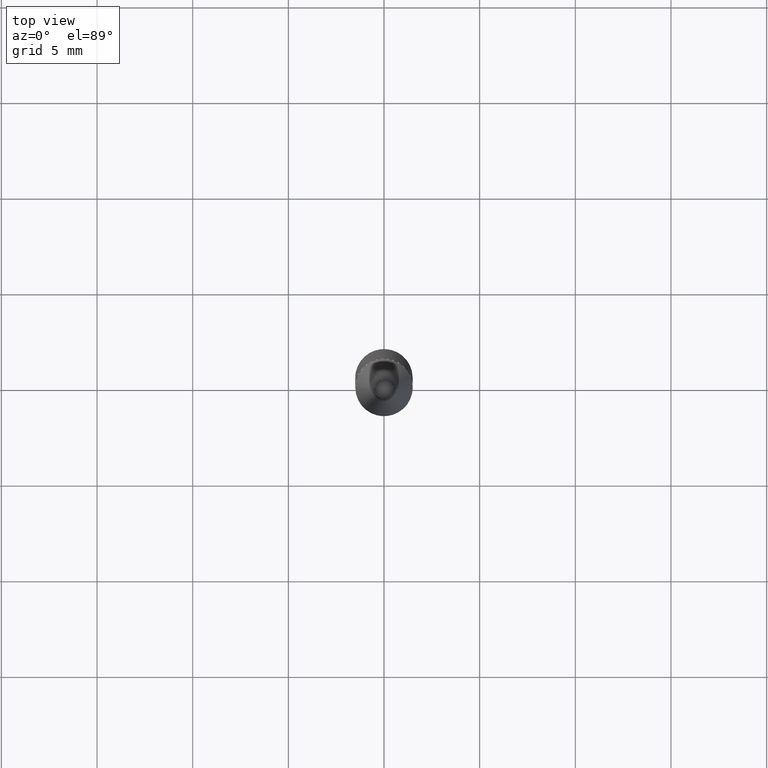
[diagram: clean part render]
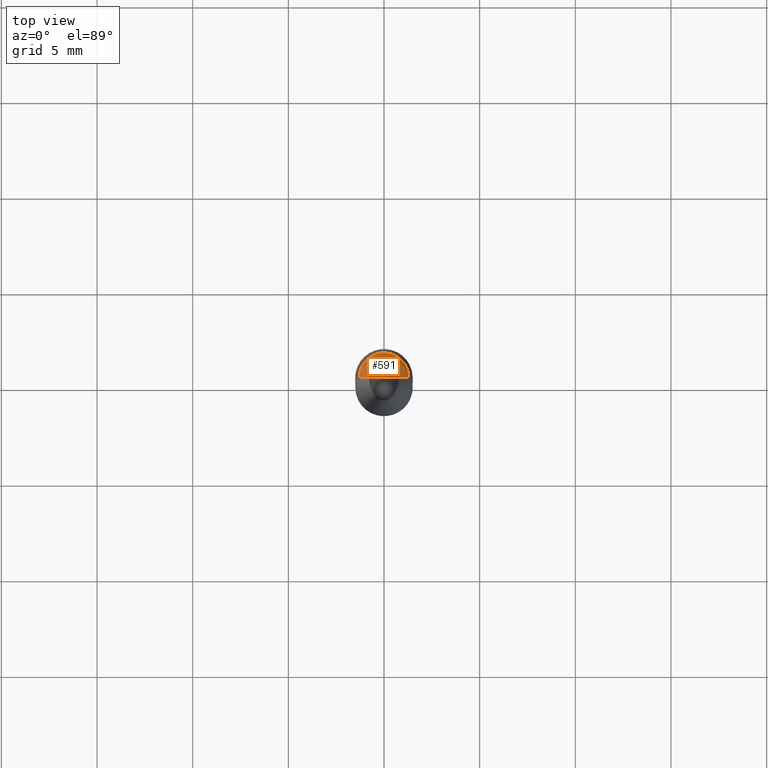
[diagram: same view with one face highlighted and labeled with its STEP entity id]
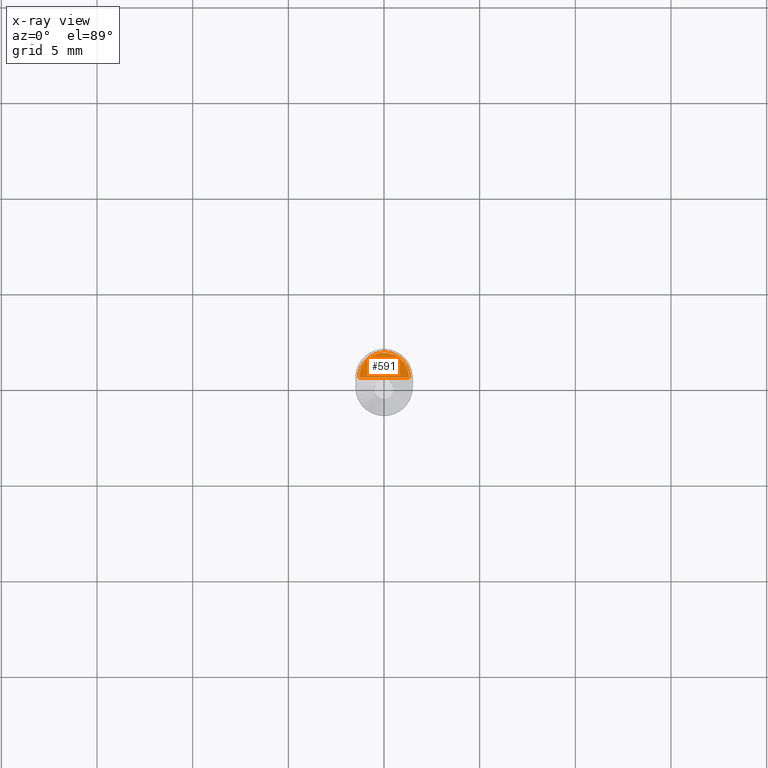
[diagram: x-ray of the same camera — body ghosted, the highlighted face saturated]
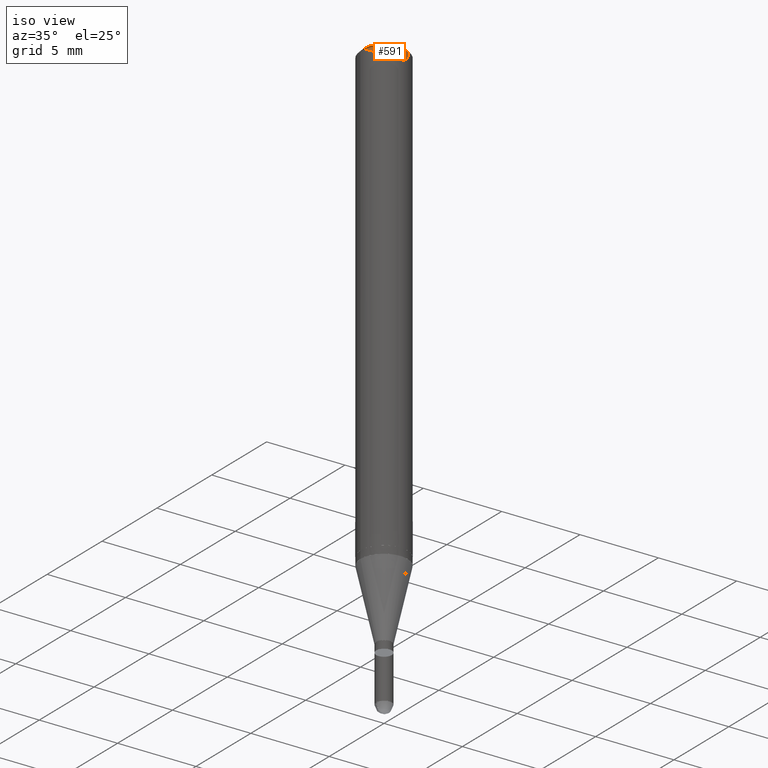
[diagram: same view with one face highlighted and labeled with its STEP entity id]
A machine part, top view. The second image highlights one B-rep face of the part: STEP entity #591.
The next image is the same camera in x-ray: the body ghosted, the highlighted face saturated — about 0% of this face is hidden behind the body in this view.
A second angle (iso view) of the same face is appended — the face is thin or edge-on in the first view.
In plain terms, the highlighted face is a freeform B-spline surface patch.
Its self-contained STEP definition (entity closure, byte-faithful):
#326=CARTESIAN_POINT('',(1.3,0.0,29.0));
#327=CARTESIAN_POINT('',(1.3,1.3,29.0));
#328=CARTESIAN_POINT('',(0.0,1.3,29.0));
#329=CARTESIAN_POINT('',(-1.3,1.3,29.0));
#330=CARTESIAN_POINT('',(-1.3,0.0,29.0));
#331=CARTESIAN_POINT('',(0.0,0.0,29.0));
#576=(
BOUNDED_SURFACE()
B_SPLINE_SURFACE(1,2,(
(#326,#327,#328,#329,#330),
(#331,#331,#331,#331,#331)
), .UNSPECIFIED.,.F.,.F.,.F.)
B_SPLINE_SURFACE_WITH_KNOTS((2,2),(3,2,3),(
0.0,1.0),(
0.0,0.5,1.0), .UNSPECIFIED.)
GEOMETRIC_REPRESENTATION_ITEM()
RATIONAL_B_SPLINE_SURFACE(((1.0,0.707106781187,1.0,0.707106781187,1.0),
(1.0,0.707106781187,1.0,0.707106781187,1.0)
))
REPRESENTATION_ITEM('')
SURFACE()
);
#577=(
BOUNDED_CURVE()
B_SPLINE_CURVE(2,(#330,#329,#328,#327,#326),.UNSPECIFIED.,.F.,.F.)
B_SPLINE_CURVE_WITH_KNOTS((3,2,3),
(0.0,0.5,1.0),.UNSPECIFIED.)
CURVE()
GEOMETRIC_REPRESENTATION_ITEM()
RATIONAL_B_SPLINE_CURVE((1.0,0.707106781187,1.0,0.707106781187,1.0))
REPRESENTATION_ITEM('')
);
#578=(
BOUNDED_CURVE()
B_SPLINE_CURVE(1,(#326,#331),.UNSPECIFIED.,.F.,.F.)
B_SPLINE_CURVE_WITH_KNOTS((2,2),
(0.0,1.0),.UNSPECIFIED.)
CURVE()
GEOMETRIC_REPRESENTATION_ITEM()
RATIONAL_B_SPLINE_CURVE((1.0,1.0))
REPRESENTATION_ITEM('')
);
#579=(
BOUNDED_CURVE()
B_SPLINE_CURVE(1,(#331,#330),.UNSPECIFIED.,.F.,.F.)
B_SPLINE_CURVE_WITH_KNOTS((2,2),
(0.0,1.0),.UNSPECIFIED.)
CURVE()
GEOMETRIC_REPRESENTATION_ITEM()
RATIONAL_B_SPLINE_CURVE((1.0,1.0))
REPRESENTATION_ITEM('')
);
#580=VERTEX_POINT('',#326);
#581=VERTEX_POINT('',#330);
#582=VERTEX_POINT('',#331);
#583=EDGE_CURVE('',#581,#580,#577,.T.);
#584=EDGE_CURVE('',#580,#582,#578,.T.);
#585=EDGE_CURVE('',#582,#581,#579,.T.);
#586=ORIENTED_EDGE('',*,*,#583,.T.);
#587=ORIENTED_EDGE('',*,*,#584,.T.);
#588=ORIENTED_EDGE('',*,*,#585,.T.);
#589=EDGE_LOOP('',(#586,#587,#588));
#590=FACE_OUTER_BOUND('',#589,.T.);
#591=ADVANCED_FACE('',(#590),#576,.T.);